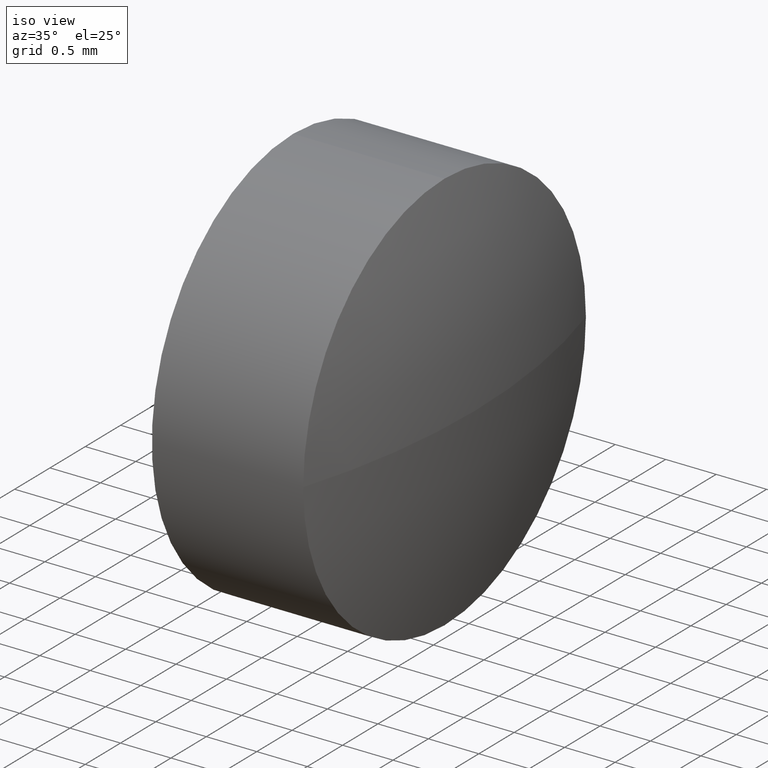
[diagram: clean part render]
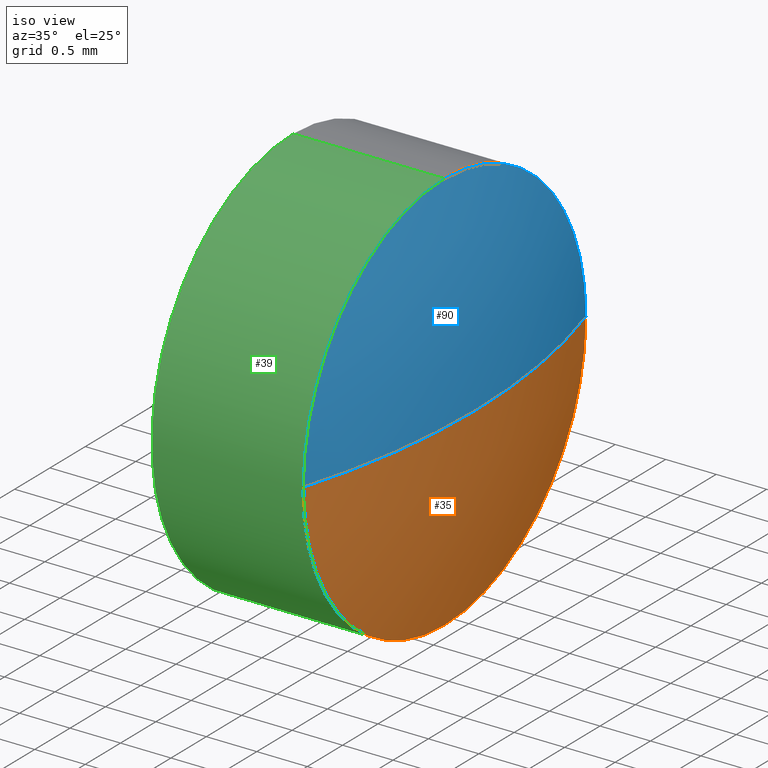
[diagram: same view with three faces highlighted in distinct colors, each labeled with its STEP entity id]
A machine part, iso view with three faces highlighted in distinct colors.
Their STEP definitions:

[orange] entity #35 — the highlighted spherical surface has radius 6.8167 mm.
#1 = DIRECTION ( 'NONE',  ( 0.0000000000000000000, 0.0000000000000000000, 1.000000000000000000 ) ) ;
#2 = DIRECTION ( 'NONE',  ( -1.000000000000000000, -0.0000000000000000000, -0.0000000000000000000 ) ) ;
#18 = ORIENTED_EDGE ( 'NONE', *, *, #141, .T. ) ;
#21 = AXIS2_PLACEMENT_3D ( 'NONE', #102, #23, #144 ) ;
#23 = DIRECTION ( 'NONE',  ( 0.0000000000000000000, 1.224646799147353200E-016, -1.000000000000000000 ) ) ;
#35 = ADVANCED_FACE ( 'NONE', ( #111 ), #123, .T. ) ;
#41 = VERTEX_POINT ( 'NONE', #156 ) ;
#42 = CIRCLE ( 'NONE', #21, 6.816666666666678900 ) ;
#51 = ORIENTED_EDGE ( 'NONE', *, *, #181, .F. ) ;
#61 = ORIENTED_EDGE ( 'NONE', *, *, #112, .F. ) ;
#66 = CARTESIAN_POINT ( 'NONE',  ( 384.4667065319727000, 60.20486323735121900, 0.0000000000000000000 ) ) ;
#69 = VERTEX_POINT ( 'NONE', #157 ) ;
#71 = DIRECTION ( 'NONE',  ( -1.000000000000000000, -0.0000000000000000000, -0.0000000000000000000 ) ) ;
#80 = ORIENTED_EDGE ( 'NONE', *, *, #92, .F. ) ;
#84 = CARTESIAN_POINT ( 'NONE',  ( 384.4667065319727000, 62.20486323735124000, 0.0000000000000000000 ) ) ;
#86 = CARTESIAN_POINT ( 'NONE',  ( 384.4667065319727000, 58.20486323735119800, -2.449293598294732500E-016 ) ) ;
#92 = EDGE_CURVE ( 'NONE', #120, #41, #132, .T. ) ;
#98 = CIRCLE ( 'NONE', #145, 2.000000000000001800 ) ;
#101 = DIRECTION ( 'NONE',  ( 0.0000000000000000000, 0.0000000000000000000, 1.000000000000000000 ) ) ;
#102 = CARTESIAN_POINT ( 'NONE',  ( 377.9500398653060000, 60.20486323735121900, 0.0000000000000000000 ) ) ;
#111 = FACE_OUTER_BOUND ( 'NONE', #152, .T. ) ;
#112 = EDGE_CURVE ( 'NONE', #69, #120, #183, .T. ) ;
#115 = CARTESIAN_POINT ( 'NONE',  ( 377.9500398653060000, 60.20486323735121900, 0.0000000000000000000 ) ) ;
#117 = AXIS2_PLACEMENT_3D ( 'NONE', #126, #171, #128 ) ;
#120 = VERTEX_POINT ( 'NONE', #84 ) ;
#121 = VERTEX_POINT ( 'NONE', #86 ) ;
#123 = SPHERICAL_SURFACE ( 'NONE', #117, 6.816666666666682400 ) ;
#126 = CARTESIAN_POINT ( 'NONE',  ( 377.9500398653060000, 60.20486323735121900, 0.0000000000000000000 ) ) ;
#128 = DIRECTION ( 'NONE',  ( 0.0000000000000000000, 1.000000000000000000, 0.0000000000000000000 ) ) ;
#131 = DIRECTION ( 'NONE',  ( -0.0000000000000000000, 0.0000000000000000000, 1.000000000000000000 ) ) ;
#132 = CIRCLE ( 'NONE', #186, 2.000000000000001800 ) ;
#141 = EDGE_CURVE ( 'NONE', #69, #121, #42, .T. ) ;
#144 = DIRECTION ( 'NONE',  ( 0.0000000000000000000, 1.000000000000000000, 1.224646799147353900E-016 ) ) ;
#145 = AXIS2_PLACEMENT_3D ( 'NONE', #66, #2, #1 ) ;
#152 = EDGE_LOOP ( 'NONE', ( #61, #18, #51, #80 ) ) ;
#156 = CARTESIAN_POINT ( 'NONE',  ( 384.4667065319727000, 60.20486323735121900, -2.000000000000001800 ) ) ;
#157 = CARTESIAN_POINT ( 'NONE',  ( 384.7667065319727200, 60.20486323735121900, 0.0000000000000000000 ) ) ;
#162 = CARTESIAN_POINT ( 'NONE',  ( 384.4667065319727000, 60.20486323735121900, 0.0000000000000000000 ) ) ;
#168 = AXIS2_PLACEMENT_3D ( 'NONE', #115, #131, #185 ) ;
#171 = DIRECTION ( 'NONE',  ( -0.0000000000000000000, 0.0000000000000000000, -1.000000000000000000 ) ) ;
#181 = EDGE_CURVE ( 'NONE', #41, #121, #98, .T. ) ;
#183 = CIRCLE ( 'NONE', #168, 6.816666666666693100 ) ;
#185 = DIRECTION ( 'NONE',  ( 1.000000000000000000, 0.0000000000000000000, 0.0000000000000000000 ) ) ;
#186 = AXIS2_PLACEMENT_3D ( 'NONE', #162, #71, #101 ) ;

[blue] entity #90 — the highlighted spherical surface has radius 6.8167 mm.
#21 = AXIS2_PLACEMENT_3D ( 'NONE', #102, #23, #144 ) ;
#23 = DIRECTION ( 'NONE',  ( 0.0000000000000000000, 1.224646799147353200E-016, -1.000000000000000000 ) ) ;
#26 = CARTESIAN_POINT ( 'NONE',  ( 384.4667065319727000, 60.20486323735121900, 0.0000000000000000000 ) ) ;
#36 = CARTESIAN_POINT ( 'NONE',  ( 384.4667065319727000, 60.20486323735121900, 0.0000000000000000000 ) ) ;
#42 = CIRCLE ( 'NONE', #21, 6.816666666666678900 ) ;
#45 = ORIENTED_EDGE ( 'NONE', *, *, #112, .T. ) ;
#47 = ORIENTED_EDGE ( 'NONE', *, *, #141, .F. ) ;
#48 = CIRCLE ( 'NONE', #137, 2.000000000000001800 ) ;
#54 = DIRECTION ( 'NONE',  ( 0.0000000000000000000, 0.0000000000000000000, 1.000000000000000000 ) ) ;
#56 = ORIENTED_EDGE ( 'NONE', *, *, #104, .F. ) ;
#57 = DIRECTION ( 'NONE',  ( -1.000000000000000000, -0.0000000000000000000, -0.0000000000000000000 ) ) ;
#69 = VERTEX_POINT ( 'NONE', #157 ) ;
#75 = VERTEX_POINT ( 'NONE', #124 ) ;
#81 = DIRECTION ( 'NONE',  ( -0.0000000000000000000, 0.0000000000000000000, -1.000000000000000000 ) ) ;
#84 = CARTESIAN_POINT ( 'NONE',  ( 384.4667065319727000, 62.20486323735124000, 0.0000000000000000000 ) ) ;
#86 = CARTESIAN_POINT ( 'NONE',  ( 384.4667065319727000, 58.20486323735119800, -2.449293598294732500E-016 ) ) ;
#90 = ADVANCED_FACE ( 'NONE', ( #96 ), #167, .T. ) ;
#95 = AXIS2_PLACEMENT_3D ( 'NONE', #170, #81, #109 ) ;
#96 = FACE_OUTER_BOUND ( 'NONE', #107, .T. ) ;
#102 = CARTESIAN_POINT ( 'NONE',  ( 377.9500398653060000, 60.20486323735121900, 0.0000000000000000000 ) ) ;
#104 = EDGE_CURVE ( 'NONE', #75, #120, #135, .T. ) ;
#107 = EDGE_LOOP ( 'NONE', ( #47, #45, #56, #169 ) ) ;
#109 = DIRECTION ( 'NONE',  ( 0.0000000000000000000, 1.000000000000000000, 0.0000000000000000000 ) ) ;
#112 = EDGE_CURVE ( 'NONE', #69, #120, #183, .T. ) ;
#115 = CARTESIAN_POINT ( 'NONE',  ( 377.9500398653060000, 60.20486323735121900, 0.0000000000000000000 ) ) ;
#120 = VERTEX_POINT ( 'NONE', #84 ) ;
#121 = VERTEX_POINT ( 'NONE', #86 ) ;
#124 = CARTESIAN_POINT ( 'NONE',  ( 384.4667065319727000, 60.20486323735121900, 2.000000000000001800 ) ) ;
#129 = DIRECTION ( 'NONE',  ( -1.000000000000000000, -0.0000000000000000000, -0.0000000000000000000 ) ) ;
#131 = DIRECTION ( 'NONE',  ( -0.0000000000000000000, 0.0000000000000000000, 1.000000000000000000 ) ) ;
#135 = CIRCLE ( 'NONE', #159, 2.000000000000001800 ) ;
#137 = AXIS2_PLACEMENT_3D ( 'NONE', #26, #129, #54 ) ;
#141 = EDGE_CURVE ( 'NONE', #69, #121, #42, .T. ) ;
#144 = DIRECTION ( 'NONE',  ( 0.0000000000000000000, 1.000000000000000000, 1.224646799147353900E-016 ) ) ;
#149 = EDGE_CURVE ( 'NONE', #121, #75, #48, .T. ) ;
#157 = CARTESIAN_POINT ( 'NONE',  ( 384.7667065319727200, 60.20486323735121900, 0.0000000000000000000 ) ) ;
#159 = AXIS2_PLACEMENT_3D ( 'NONE', #36, #57, #160 ) ;
#160 = DIRECTION ( 'NONE',  ( 0.0000000000000000000, 0.0000000000000000000, 1.000000000000000000 ) ) ;
#167 = SPHERICAL_SURFACE ( 'NONE', #95, 6.816666666666682400 ) ;
#168 = AXIS2_PLACEMENT_3D ( 'NONE', #115, #131, #185 ) ;
#169 = ORIENTED_EDGE ( 'NONE', *, *, #149, .F. ) ;
#170 = CARTESIAN_POINT ( 'NONE',  ( 377.9500398653060000, 60.20486323735121900, 0.0000000000000000000 ) ) ;
#183 = CIRCLE ( 'NONE', #168, 6.816666666666693100 ) ;
#185 = DIRECTION ( 'NONE',  ( 1.000000000000000000, 0.0000000000000000000, 0.0000000000000000000 ) ) ;

[green] entity #39 — the highlighted cylindrical surface (partial cylindrical patch) has radius 2 mm, axis along (-1, -0, -0).
#1 = DIRECTION ( 'NONE',  ( 0.0000000000000000000, 0.0000000000000000000, 1.000000000000000000 ) ) ;
#2 = DIRECTION ( 'NONE',  ( -1.000000000000000000, -0.0000000000000000000, -0.0000000000000000000 ) ) ;
#5 = AXIS2_PLACEMENT_3D ( 'NONE', #184, #138, #113 ) ;
#8 = VERTEX_POINT ( 'NONE', #140 ) ;
#16 = AXIS2_PLACEMENT_3D ( 'NONE', #119, #143, #99 ) ;
#20 = VERTEX_POINT ( 'NONE', #78 ) ;
#26 = CARTESIAN_POINT ( 'NONE',  ( 384.4667065319727000, 60.20486323735121900, 0.0000000000000000000 ) ) ;
#28 = VECTOR ( 'NONE', #34, 1000.000000000000000 ) ;
#33 = CYLINDRICAL_SURFACE ( 'NONE', #5, 2.000000000000001800 ) ;
#34 = DIRECTION ( 'NONE',  ( -1.000000000000000000, -0.0000000000000000000, -0.0000000000000000000 ) ) ;
#39 = ADVANCED_FACE ( 'NONE', ( #82 ), #33, .T. ) ;
#41 = VERTEX_POINT ( 'NONE', #156 ) ;
#48 = CIRCLE ( 'NONE', #137, 2.000000000000001800 ) ;
#54 = DIRECTION ( 'NONE',  ( 0.0000000000000000000, 0.0000000000000000000, 1.000000000000000000 ) ) ;
#66 = CARTESIAN_POINT ( 'NONE',  ( 384.4667065319727000, 60.20486323735121900, 0.0000000000000000000 ) ) ;
#68 = EDGE_LOOP ( 'NONE', ( #163, #147, #110, #164, #76 ) ) ;
#75 = VERTEX_POINT ( 'NONE', #124 ) ;
#76 = ORIENTED_EDGE ( 'NONE', *, *, #153, .F. ) ;
#78 = CARTESIAN_POINT ( 'NONE',  ( 382.9667065319727000, 60.20486323735121900, -2.000000000000001800 ) ) ;
#82 = FACE_OUTER_BOUND ( 'NONE', #68, .T. ) ;
#86 = CARTESIAN_POINT ( 'NONE',  ( 384.4667065319727000, 58.20486323735119800, -2.449293598294732500E-016 ) ) ;
#98 = CIRCLE ( 'NONE', #145, 2.000000000000001800 ) ;
#99 = DIRECTION ( 'NONE',  ( 0.0000000000000000000, 0.0000000000000000000, 1.000000000000000000 ) ) ;
#110 = ORIENTED_EDGE ( 'NONE', *, *, #149, .T. ) ;
#113 = DIRECTION ( 'NONE',  ( 0.0000000000000000000, 0.0000000000000000000, 1.000000000000000000 ) ) ;
#119 = CARTESIAN_POINT ( 'NONE',  ( 382.9667065319727000, 60.20486323735121900, 0.0000000000000000000 ) ) ;
#121 = VERTEX_POINT ( 'NONE', #86 ) ;
#122 = VECTOR ( 'NONE', #158, 1000.000000000000000 ) ;
#124 = CARTESIAN_POINT ( 'NONE',  ( 384.4667065319727000, 60.20486323735121900, 2.000000000000001800 ) ) ;
#127 = LINE ( 'NONE', #175, #28 ) ;
#129 = DIRECTION ( 'NONE',  ( -1.000000000000000000, -0.0000000000000000000, -0.0000000000000000000 ) ) ;
#134 = EDGE_CURVE ( 'NONE', #41, #20, #127, .T. ) ;
#137 = AXIS2_PLACEMENT_3D ( 'NONE', #26, #129, #54 ) ;
#138 = DIRECTION ( 'NONE',  ( -1.000000000000000000, -0.0000000000000000000, -0.0000000000000000000 ) ) ;
#139 = CIRCLE ( 'NONE', #16, 2.000000000000001800 ) ;
#140 = CARTESIAN_POINT ( 'NONE',  ( 382.9667065319727000, 60.20486323735121900, 2.000000000000001800 ) ) ;
#142 = CARTESIAN_POINT ( 'NONE',  ( 382.5385998379259700, 60.20486323735121900, 2.000000000000001800 ) ) ;
#143 = DIRECTION ( 'NONE',  ( -1.000000000000000000, -0.0000000000000000000, -0.0000000000000000000 ) ) ;
#145 = AXIS2_PLACEMENT_3D ( 'NONE', #66, #2, #1 ) ;
#147 = ORIENTED_EDGE ( 'NONE', *, *, #181, .T. ) ;
#149 = EDGE_CURVE ( 'NONE', #121, #75, #48, .T. ) ;
#153 = EDGE_CURVE ( 'NONE', #20, #8, #139, .T. ) ;
#156 = CARTESIAN_POINT ( 'NONE',  ( 384.4667065319727000, 60.20486323735121900, -2.000000000000001800 ) ) ;
#158 = DIRECTION ( 'NONE',  ( -1.000000000000000000, -0.0000000000000000000, -0.0000000000000000000 ) ) ;
#163 = ORIENTED_EDGE ( 'NONE', *, *, #134, .F. ) ;
#164 = ORIENTED_EDGE ( 'NONE', *, *, #177, .T. ) ;
#175 = CARTESIAN_POINT ( 'NONE',  ( 382.5385998379259700, 60.20486323735121900, -2.000000000000001800 ) ) ;
#177 = EDGE_CURVE ( 'NONE', #75, #8, #180, .T. ) ;
#180 = LINE ( 'NONE', #142, #122 ) ;
#181 = EDGE_CURVE ( 'NONE', #41, #121, #98, .T. ) ;
#184 = CARTESIAN_POINT ( 'NONE',  ( 382.5385998379259700, 60.20486323735121900, 0.0000000000000000000 ) ) ;